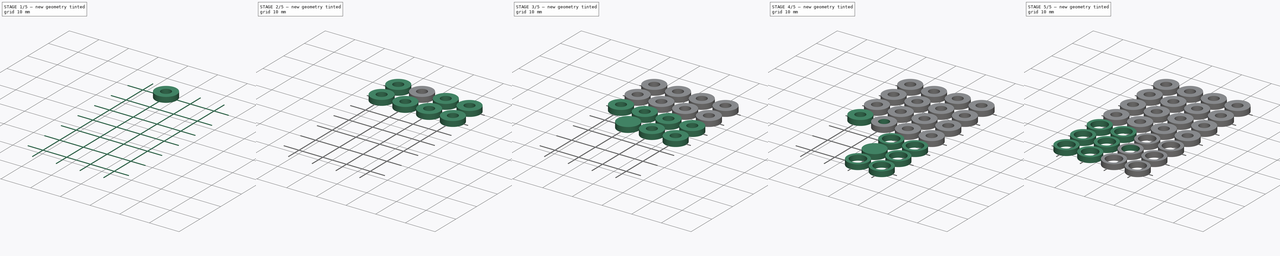
[diagram: build sequence overview — one tinted view per stage of 5, left to right]
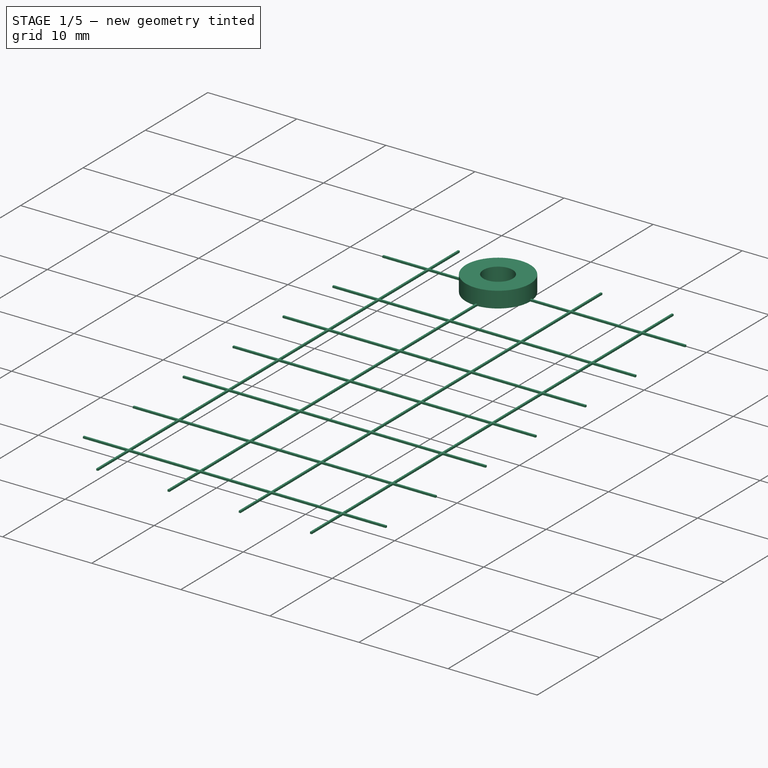
[diagram: stage 1 of 5 — iso view after this stage's code; geometry added in this stage tinted green]
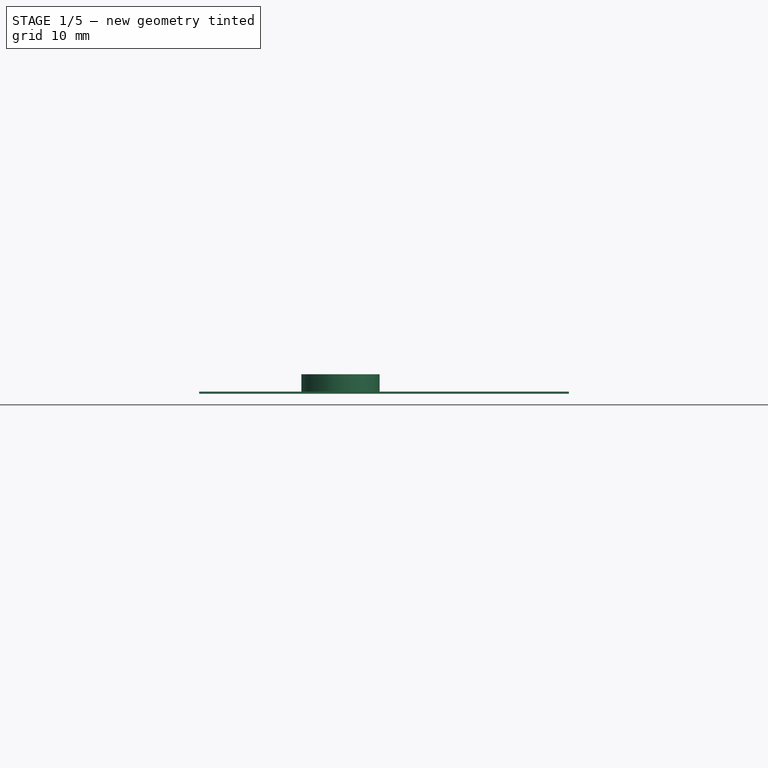
[diagram: stage 1 of 5 — front view after this stage's code; geometry added in this stage tinted green]
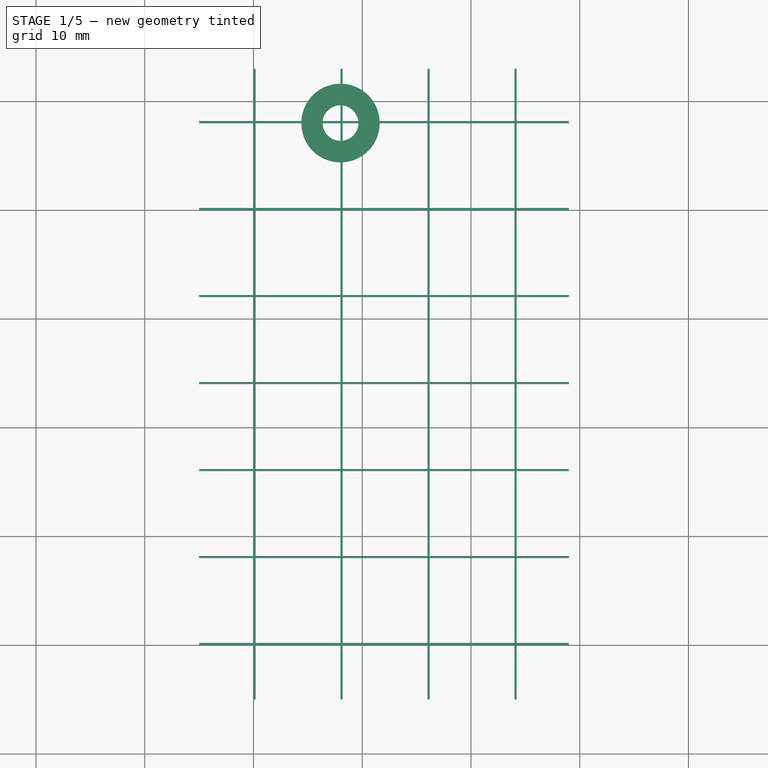
[diagram: stage 1 of 5 — top view after this stage's code; geometry added in this stage tinted green]
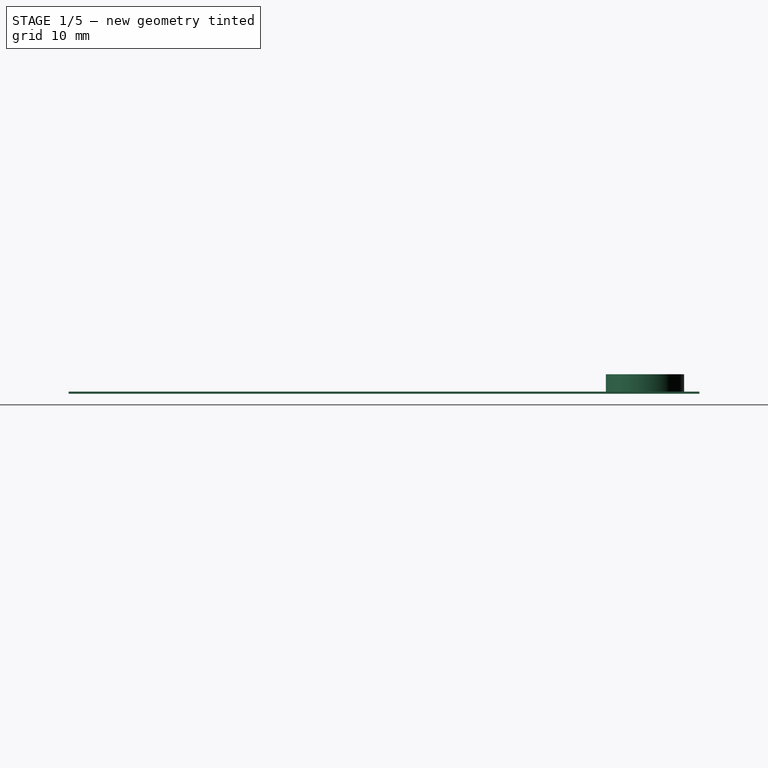
[diagram: stage 1 of 5 — right view after this stage's code; geometry added in this stage tinted green]
FCSTD DOCUMENT  (FreeCAD 0.16R6706 (Git))
Label: washers
License: All rights reserved
LicenseURL: http://en.wikipedia.org/wiki/All_rights_reserved
objects: Part::Cylinder×28, Sketcher::SketchObject×28, PartDesign::Pocket×28, Part::Box×11
note: 123 computed .brp shape members not serialized (recipe doc carries the construction recipe); baked Part::Feature solids carry a one-line shape summary decoded from their .brp

FEATURE [Part::Cylinder] Cylinder027  label="motor015"
  Angle = 360
  Height = 1.8
  Placement = pos=(8,48,0) rot=(0,0,1;0rad)
  Radius = 3.6
FEATURE [Sketcher::SketchObject] Sketch027  label="motorsketch015"
  Placement = pos=(8,48,1.8) rot=(0,0,1;0rad)
  Support = -> Cylinder027 [Face2]
  sketch-geometry (1):
    g0: Circle CenterX=0 CenterY=0 CenterZ=0 NormalX=0 NormalY=0 NormalZ=1 Radius=1.65
  constraints (3):
    c: DistanceX(g-2,g0) = 0
    c: DistanceY(g-1,g0) = 0
    c: Radius(g0) = 1.65
FEATURE [PartDesign::Pocket] Pocket027  label="motorpocket015"
  Length = 5
  Placement = pos=(8,48,0) rot=(0,0,1;0rad)
  Sketch = -> Sketch027
  Type = 0
FEATURE [Part::Box] Box  label="raft"
  Height = 0.2
  Length = 0.2
  Placement = pos=(0,-5,0) rot=(0,0,1;0rad)
  Width = 58
FEATURE [Part::Box] Box001  label="raft001"
  Height = 0.2
  Length = 0.2
  Placement = pos=(8,-5,0) rot=(0,0,1;0rad)
  Width = 58
FEATURE [Part::Box] Box002  label="raft002"
  Height = 0.2
  Length = 0.2
  Placement = pos=(16,-5,0) rot=(0,0,1;0rad)
  Width = 58
FEATURE [Part::Box] Box003  label="raft003"
  Height = 0.2
  Length = 0.2
  Placement = pos=(24,-5,0) rot=(0,0,1;0rad)
  Width = 58
FEATURE [Part::Box] Box004  label="raft004"
  Height = 0.2
  Length = 34
  Placement = pos=(-5,0,0) rot=(0,0,1;0rad)
  Width = 0.2
FEATURE [Part::Box] Box005  label="raft005"
  Height = 0.2
  Length = 34
  Placement = pos=(-5,8,0) rot=(0,0,1;0rad)
  Width = 0.2
FEATURE [Part::Box] Box006  label="raft006"
  Height = 0.2
  Length = 34
  Placement = pos=(-5,16,0) rot=(0,0,1;0rad)
  Width = 0.2
FEATURE [Part::Box] Box007  label="raft007"
  Height = 0.2
  Length = 34
  Placement = pos=(-5,24,0) rot=(0,0,1;0rad)
  Width = 0.2
FEATURE [Part::Box] Box008  label="raft008"
  Height = 0.2
  Length = 34
  Placement = pos=(-5,32,0) rot=(0,0,1;0rad)
  Width = 0.2
FEATURE [Part::Box] Box009  label="raft009"
  Height = 0.2
  Length = 34
  Placement = pos=(-5,40,0) rot=(0,0,1;0rad)
  Width = 0.2
FEATURE [Part::Box] Box010  label="raft010"
  Height = 0.2
  Length = 34
  Placement = pos=(-5,48,0) rot=(0,0,1;0rad)
  Width = 0.2
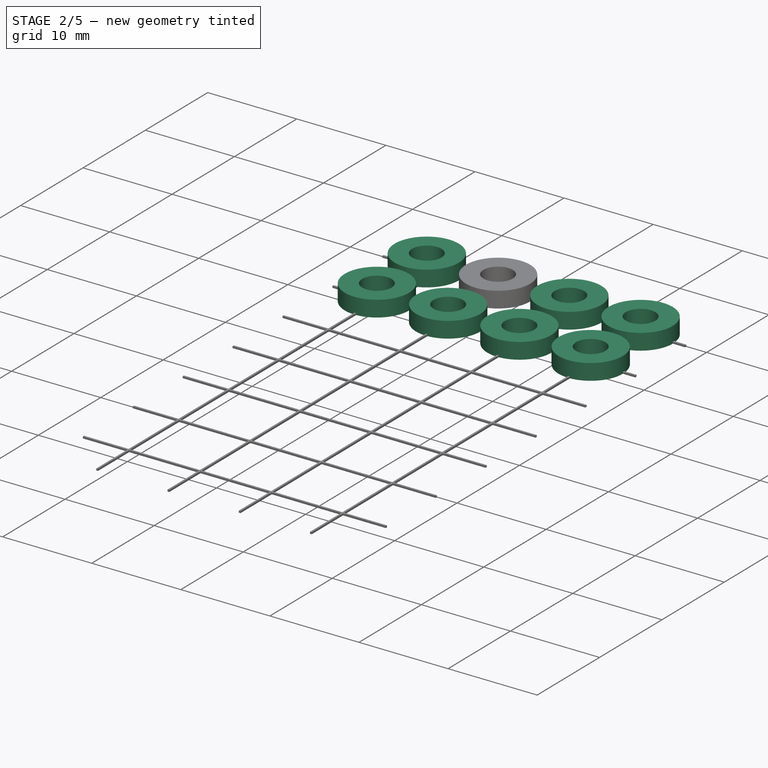
[diagram: stage 2 of 5 — iso view after this stage's code; geometry added in this stage tinted green]
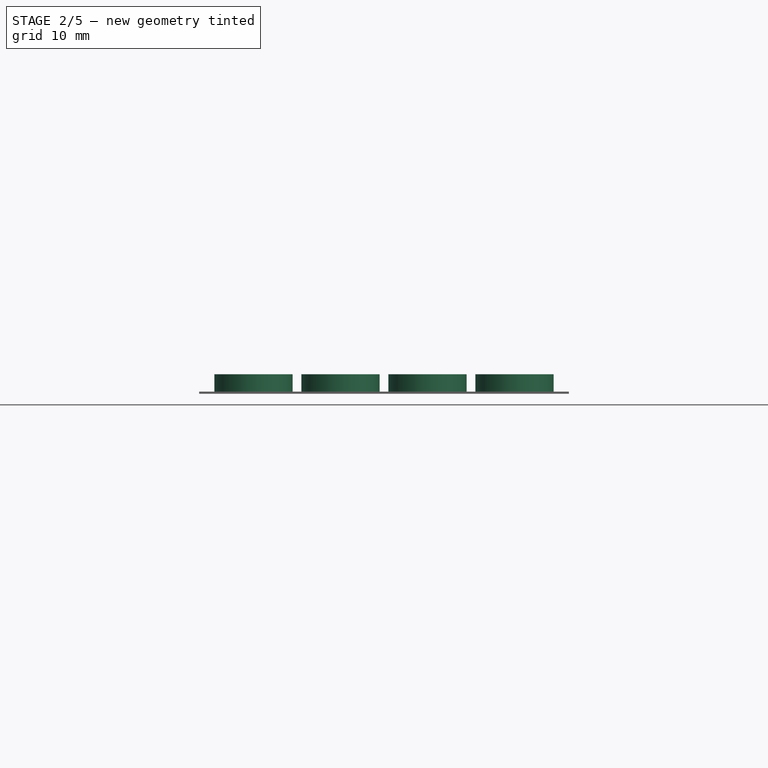
[diagram: stage 2 of 5 — front view after this stage's code; geometry added in this stage tinted green]
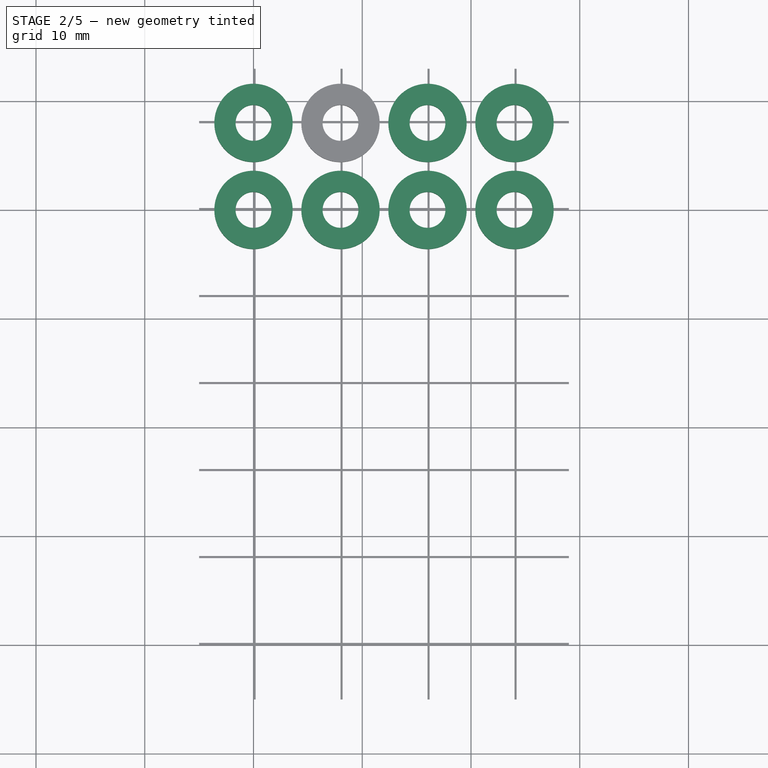
[diagram: stage 2 of 5 — top view after this stage's code; geometry added in this stage tinted green]
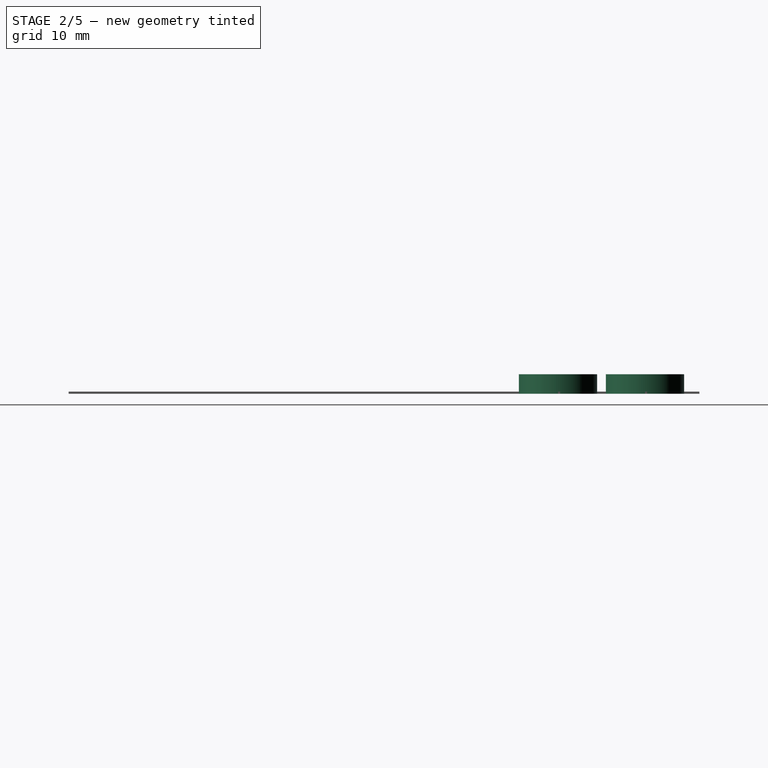
[diagram: stage 2 of 5 — right view after this stage's code; geometry added in this stage tinted green]
FEATURE [Part::Cylinder] Cylinder020  label="motor008"
  Angle = 360
  Height = 1.8
  Placement = pos=(24,40,0) rot=(0,0,1;0rad)
  Radius = 3.6
FEATURE [Sketcher::SketchObject] Sketch020  label="motorsketch008"
  Placement = pos=(24,40,1.8) rot=(0,0,1;0rad)
  Support = -> Cylinder020 [Face2]
  sketch-geometry (1):
    g0: Circle CenterX=0 CenterY=0 CenterZ=0 NormalX=0 NormalY=0 NormalZ=1 Radius=1.65
  constraints (3):
    c: DistanceX(g-2,g0) = 0
    c: DistanceY(g-1,g0) = 0
    c: Radius(g0) = 1.65
FEATURE [PartDesign::Pocket] Pocket020  label="motorpocket008"
  Length = 5
  Placement = pos=(24,40,0) rot=(0,0,1;0rad)
  Sketch = -> Sketch020
  Type = 0
FEATURE [Part::Cylinder] Cylinder021  label="motor009"
  Angle = 360
  Height = 1.8
  Placement = pos=(16,40,0) rot=(0,0,1;0rad)
  Radius = 3.6
FEATURE [Sketcher::SketchObject] Sketch021  label="motorsketch009"
  Placement = pos=(16,40,1.8) rot=(0,0,1;0rad)
  Support = -> Cylinder021 [Face2]
  sketch-geometry (1):
    g0: Circle CenterX=0 CenterY=0 CenterZ=0 NormalX=0 NormalY=0 NormalZ=1 Radius=1.65
  constraints (3):
    c: DistanceX(g-2,g0) = 0
    c: DistanceY(g-1,g0) = 0
    c: Radius(g0) = 1.65
FEATURE [PartDesign::Pocket] Pocket021  label="motorpocket009"
  Length = 5
  Placement = pos=(16,40,0) rot=(0,0,1;0rad)
  Sketch = -> Sketch021
  Type = 0
FEATURE [Part::Cylinder] Cylinder022  label="motor010"
  Angle = 360
  Height = 1.8
  Placement = pos=(0,40,0) rot=(0,0,1;0rad)
  Radius = 3.6
FEATURE [Sketcher::SketchObject] Sketch022  label="motorsketch010"
  Placement = pos=(0,40,1.8) rot=(0,0,1;0rad)
  Support = -> Cylinder022 [Face2]
  sketch-geometry (1):
    g0: Circle CenterX=0 CenterY=0 CenterZ=0 NormalX=0 NormalY=0 NormalZ=1 Radius=1.65
  constraints (3):
    c: DistanceX(g-2,g0) = 0
    c: DistanceY(g-1,g0) = 0
    c: Radius(g0) = 1.65
FEATURE [PartDesign::Pocket] Pocket022  label="motorpocket010"
  Length = 5
  Placement = pos=(0,40,0) rot=(0,0,1;0rad)
  Sketch = -> Sketch022
  Type = 0
FEATURE [Part::Cylinder] Cylinder023  label="motor011"
  Angle = 360
  Height = 1.8
  Placement = pos=(8,40,0) rot=(0,0,1;0rad)
  Radius = 3.6
FEATURE [Sketcher::SketchObject] Sketch023  label="motorsketch011"
  Placement = pos=(8,40,1.8) rot=(0,0,1;0rad)
  Support = -> Cylinder023 [Face2]
  sketch-geometry (1):
    g0: Circle CenterX=0 CenterY=0 CenterZ=0 NormalX=0 NormalY=0 NormalZ=1 Radius=1.65
  constraints (3):
    c: DistanceX(g-2,g0) = 0
    c: DistanceY(g-1,g0) = 0
    c: Radius(g0) = 1.65
FEATURE [PartDesign::Pocket] Pocket023  label="motorpocket011"
  Length = 5
  Placement = pos=(8,40,0) rot=(0,0,1;0rad)
  Sketch = -> Sketch023
  Type = 0
FEATURE [Part::Cylinder] Cylinder024  label="motor012"
  Angle = 360
  Height = 1.8
  Placement = pos=(24,48,0) rot=(0,0,1;0rad)
  Radius = 3.6
FEATURE [Sketcher::SketchObject] Sketch024  label="motorsketch012"
  Placement = pos=(24,48,1.8) rot=(0,0,1;0rad)
  Support = -> Cylinder024 [Face2]
  sketch-geometry (1):
    g0: Circle CenterX=0 CenterY=0 CenterZ=0 NormalX=0 NormalY=0 NormalZ=1 Radius=1.65
  constraints (3):
    c: DistanceX(g-2,g0) = 0
    c: DistanceY(g-1,g0) = 0
    c: Radius(g0) = 1.65
FEATURE [PartDesign::Pocket] Pocket024  label="motorpocket012"
  Length = 5
  Placement = pos=(24,48,0) rot=(0,0,1;0rad)
  Sketch = -> Sketch024
  Type = 0
FEATURE [Part::Cylinder] Cylinder025  label="motor013"
  Angle = 360
  Height = 1.8
  Placement = pos=(16,48,0) rot=(0,0,1;0rad)
  Radius = 3.6
FEATURE [Sketcher::SketchObject] Sketch025  label="motorsketch013"
  Placement = pos=(16,48,1.8) rot=(0,0,1;0rad)
  Support = -> Cylinder025 [Face2]
  sketch-geometry (1):
    g0: Circle CenterX=0 CenterY=0 CenterZ=0 NormalX=0 NormalY=0 NormalZ=1 Radius=1.65
  constraints (3):
    c: DistanceX(g-2,g0) = 0
    c: DistanceY(g-1,g0) = 0
    c: Radius(g0) = 1.65
FEATURE [PartDesign::Pocket] Pocket025  label="motorpocket013"
  Length = 5
  Placement = pos=(16,48,0) rot=(0,0,1;0rad)
  Sketch = -> Sketch025
  Type = 0
FEATURE [Part::Cylinder] Cylinder026  label="motor014"
  Angle = 360
  Height = 1.8
  Placement = pos=(0,48,0) rot=(0,0,1;0rad)
  Radius = 3.6
FEATURE [Sketcher::SketchObject] Sketch026  label="motorsketch014"
  Placement = pos=(0,48,1.8) rot=(0,0,1;0rad)
  Support = -> Cylinder026 [Face2]
  sketch-geometry (1):
    g0: Circle CenterX=0 CenterY=0 CenterZ=0 NormalX=0 NormalY=0 NormalZ=1 Radius=1.65
  constraints (3):
    c: DistanceX(g-2,g0) = 0
    c: DistanceY(g-1,g0) = 0
    c: Radius(g0) = 1.65
FEATURE [PartDesign::Pocket] Pocket026  label="motorpocket014"
  Length = 5
  Placement = pos=(0,48,0) rot=(0,0,1;0rad)
  Sketch = -> Sketch026
  Type = 0
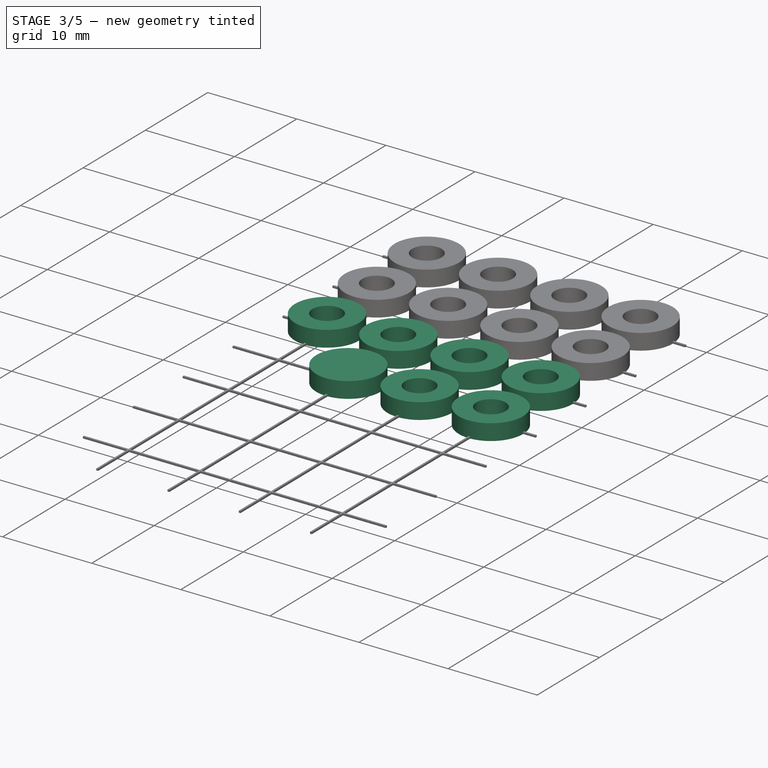
[diagram: stage 3 of 5 — iso view after this stage's code; geometry added in this stage tinted green]
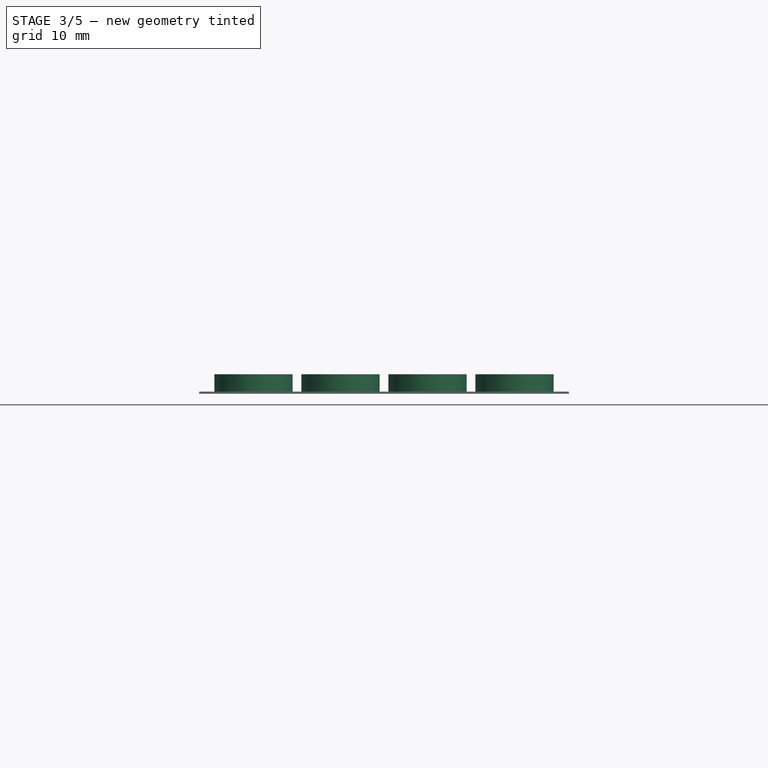
[diagram: stage 3 of 5 — front view after this stage's code; geometry added in this stage tinted green]
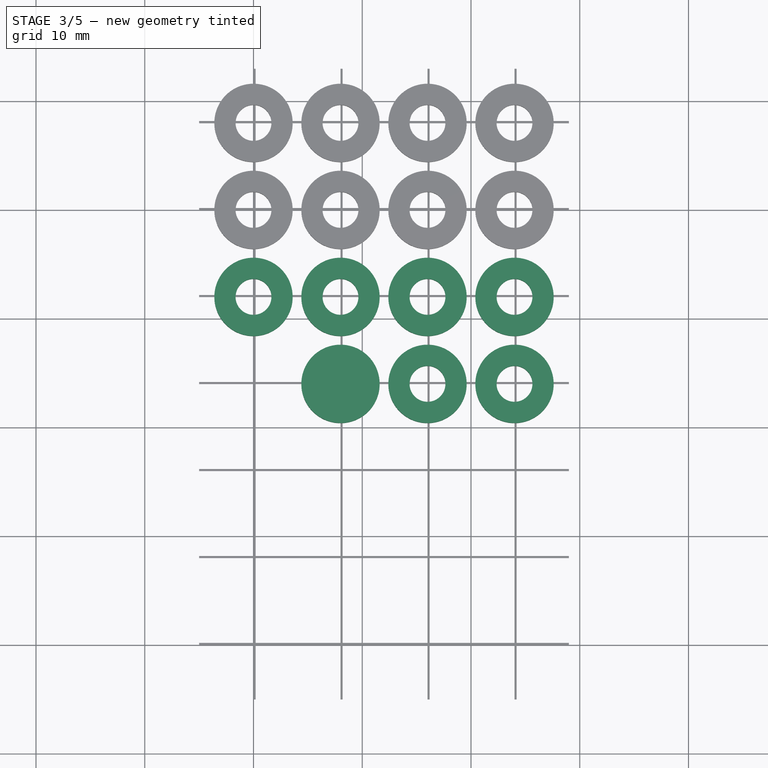
[diagram: stage 3 of 5 — top view after this stage's code; geometry added in this stage tinted green]
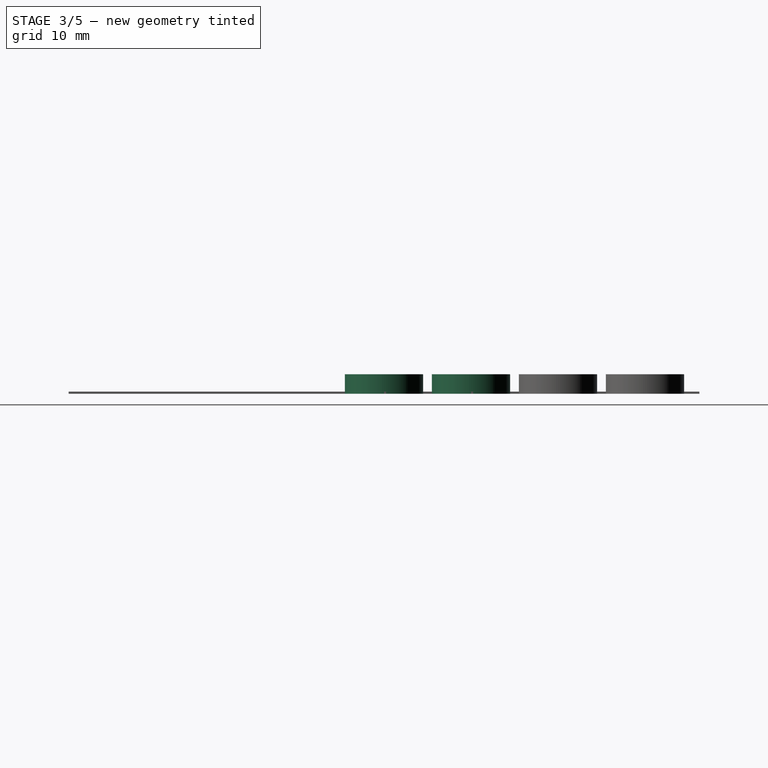
[diagram: stage 3 of 5 — right view after this stage's code; geometry added in this stage tinted green]
FEATURE [Part::Cylinder] Cylinder013  label="motor001"
  Angle = 360
  Height = 1.8
  Placement = pos=(8,24,0) rot=(0,0,1;0rad)
  Radius = 3.6
FEATURE [Part::Cylinder] Cylinder014  label="motor002"
  Angle = 360
  Height = 1.8
  Placement = pos=(16,24,0) rot=(0,0,1;0rad)
  Radius = 3.6
FEATURE [Sketcher::SketchObject] Sketch014  label="motorsketch002"
  Placement = pos=(16,24,1.8) rot=(0,0,1;0rad)
  Support = -> Cylinder014 [Face2]
  sketch-geometry (1):
    g0: Circle CenterX=0 CenterY=0 CenterZ=0 NormalX=0 NormalY=0 NormalZ=1 Radius=1.65
  constraints (3):
    c: DistanceX(g-2,g0) = 0
    c: DistanceY(g-1,g0) = 0
    c: Radius(g0) = 1.65
FEATURE [PartDesign::Pocket] Pocket014  label="motorpocket002"
  Length = 5
  Placement = pos=(16,24,0) rot=(0,0,1;0rad)
  Sketch = -> Sketch014
  Type = 0
FEATURE [Part::Cylinder] Cylinder015  label="motor003"
  Angle = 360
  Height = 1.8
  Placement = pos=(24,24,0) rot=(0,0,1;0rad)
  Radius = 3.6
FEATURE [Sketcher::SketchObject] Sketch015  label="motorsketch003"
  Placement = pos=(24,24,1.8) rot=(0,0,1;0rad)
  Support = -> Cylinder015 [Face2]
  sketch-geometry (1):
    g0: Circle CenterX=0 CenterY=0 CenterZ=0 NormalX=0 NormalY=0 NormalZ=1 Radius=1.65
  constraints (3):
    c: DistanceX(g-2,g0) = 0
    c: DistanceY(g-1,g0) = 0
    c: Radius(g0) = 1.65
FEATURE [PartDesign::Pocket] Pocket015  label="motorpocket003"
  Length = 5
  Placement = pos=(24,24,0) rot=(0,0,1;0rad)
  Sketch = -> Sketch015
  Type = 0
FEATURE [Part::Cylinder] Cylinder016  label="motor004"
  Angle = 360
  Height = 1.8
  Placement = pos=(24,32,0) rot=(0,0,1;0rad)
  Radius = 3.6
FEATURE [Sketcher::SketchObject] Sketch016  label="motorsketch004"
  Placement = pos=(24,32,1.8) rot=(0,0,1;0rad)
  Support = -> Cylinder016 [Face2]
  sketch-geometry (1):
    g0: Circle CenterX=0 CenterY=0 CenterZ=0 NormalX=0 NormalY=0 NormalZ=1 Radius=1.65
  constraints (3):
    c: DistanceX(g-2,g0) = 0
    c: DistanceY(g-1,g0) = 0
    c: Radius(g0) = 1.65
FEATURE [PartDesign::Pocket] Pocket016  label="motorpocket004"
  Length = 5
  Placement = pos=(24,32,0) rot=(0,0,1;0rad)
  Sketch = -> Sketch016
  Type = 0
FEATURE [Part::Cylinder] Cylinder017  label="motor005"
  Angle = 360
  Height = 1.8
  Placement = pos=(16,32,0) rot=(0,0,1;0rad)
  Radius = 3.6
FEATURE [Sketcher::SketchObject] Sketch017  label="motorsketch005"
  Placement = pos=(16,32,1.8) rot=(0,0,1;0rad)
  Support = -> Cylinder017 [Face2]
  sketch-geometry (1):
    g0: Circle CenterX=0 CenterY=0 CenterZ=0 NormalX=0 NormalY=0 NormalZ=1 Radius=1.65
  constraints (3):
    c: DistanceX(g-2,g0) = 0
    c: DistanceY(g-1,g0) = 0
    c: Radius(g0) = 1.65
FEATURE [PartDesign::Pocket] Pocket017  label="motorpocket005"
  Length = 5
  Placement = pos=(16,32,0) rot=(0,0,1;0rad)
  Sketch = -> Sketch017
  Type = 0
FEATURE [Part::Cylinder] Cylinder018  label="motor006"
  Angle = 360
  Height = 1.8
  Placement = pos=(0,32,0) rot=(0,0,1;0rad)
  Radius = 3.6
FEATURE [Sketcher::SketchObject] Sketch018  label="motorsketch006"
  Placement = pos=(0,32,1.8) rot=(0,0,1;0rad)
  Support = -> Cylinder018 [Face2]
  sketch-geometry (1):
    g0: Circle CenterX=0 CenterY=0 CenterZ=0 NormalX=0 NormalY=0 NormalZ=1 Radius=1.65
  constraints (3):
    c: DistanceX(g-2,g0) = 0
    c: DistanceY(g-1,g0) = 0
    c: Radius(g0) = 1.65
FEATURE [PartDesign::Pocket] Pocket018  label="motorpocket006"
  Length = 5
  Placement = pos=(0,32,0) rot=(0,0,1;0rad)
  Sketch = -> Sketch018
  Type = 0
FEATURE [Part::Cylinder] Cylinder019  label="motor007"
  Angle = 360
  Height = 1.8
  Placement = pos=(8,32,0) rot=(0,0,1;0rad)
  Radius = 3.6
FEATURE [Sketcher::SketchObject] Sketch019  label="motorsketch007"
  Placement = pos=(8,32,1.8) rot=(0,0,1;0rad)
  Support = -> Cylinder019 [Face2]
  sketch-geometry (1):
    g0: Circle CenterX=0 CenterY=0 CenterZ=0 NormalX=0 NormalY=0 NormalZ=1 Radius=1.65
  constraints (3):
    c: DistanceX(g-2,g0) = 0
    c: DistanceY(g-1,g0) = 0
    c: Radius(g0) = 1.65
FEATURE [PartDesign::Pocket] Pocket019  label="motorpocket007"
  Length = 5
  Placement = pos=(8,32,0) rot=(0,0,1;0rad)
  Sketch = -> Sketch019
  Type = 0
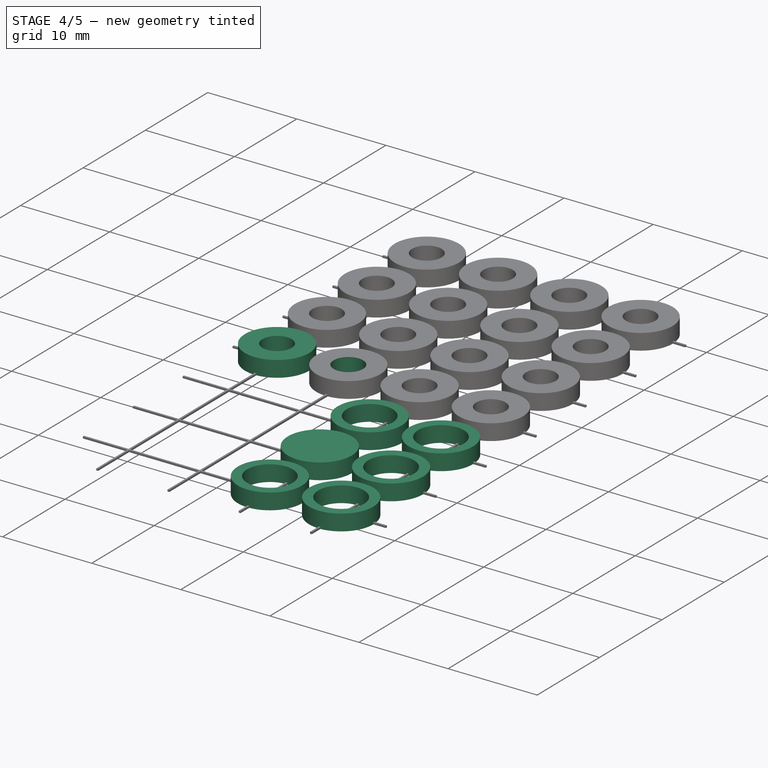
[diagram: stage 4 of 5 — iso view after this stage's code; geometry added in this stage tinted green]
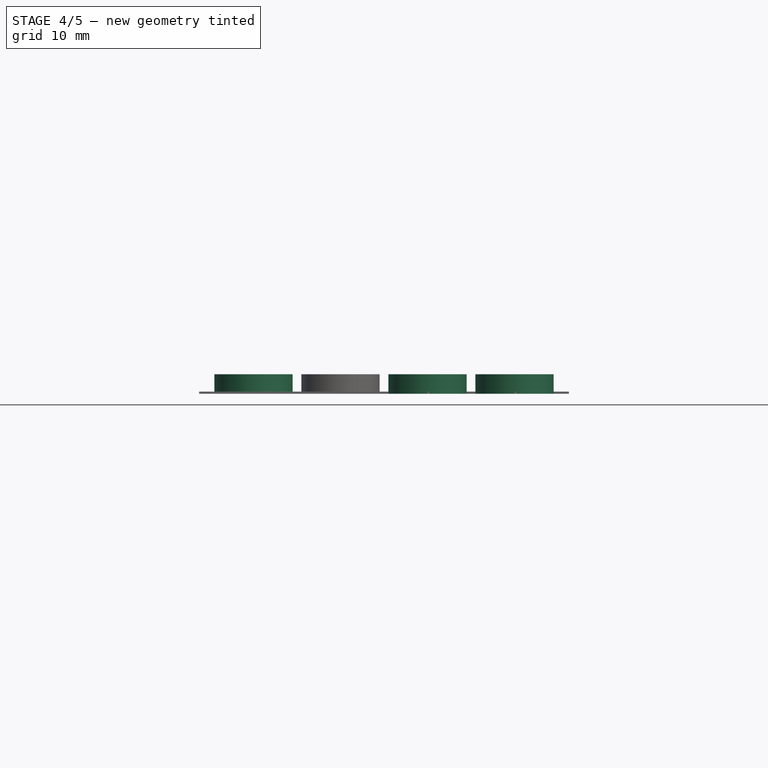
[diagram: stage 4 of 5 — front view after this stage's code; geometry added in this stage tinted green]
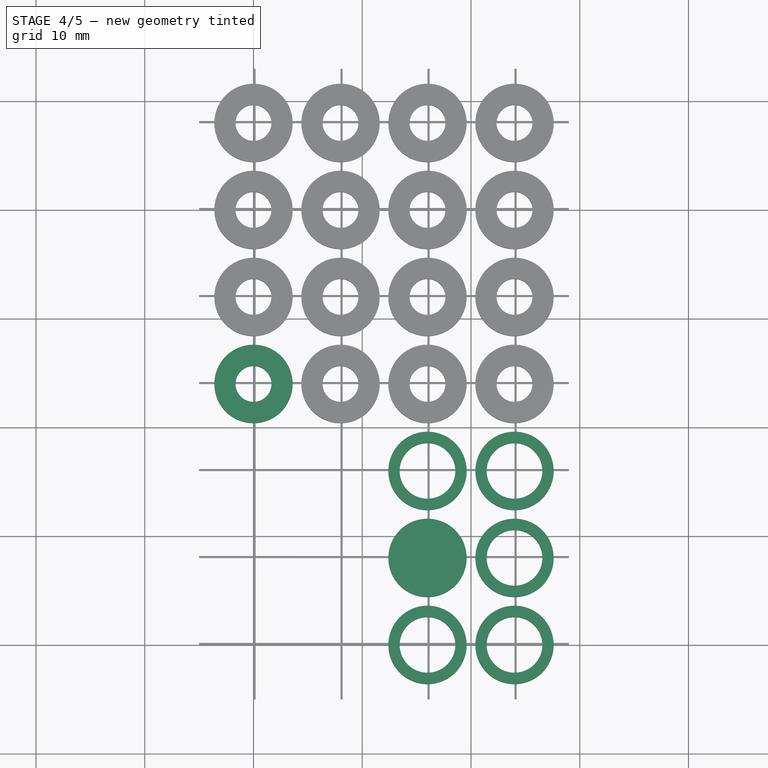
[diagram: stage 4 of 5 — top view after this stage's code; geometry added in this stage tinted green]
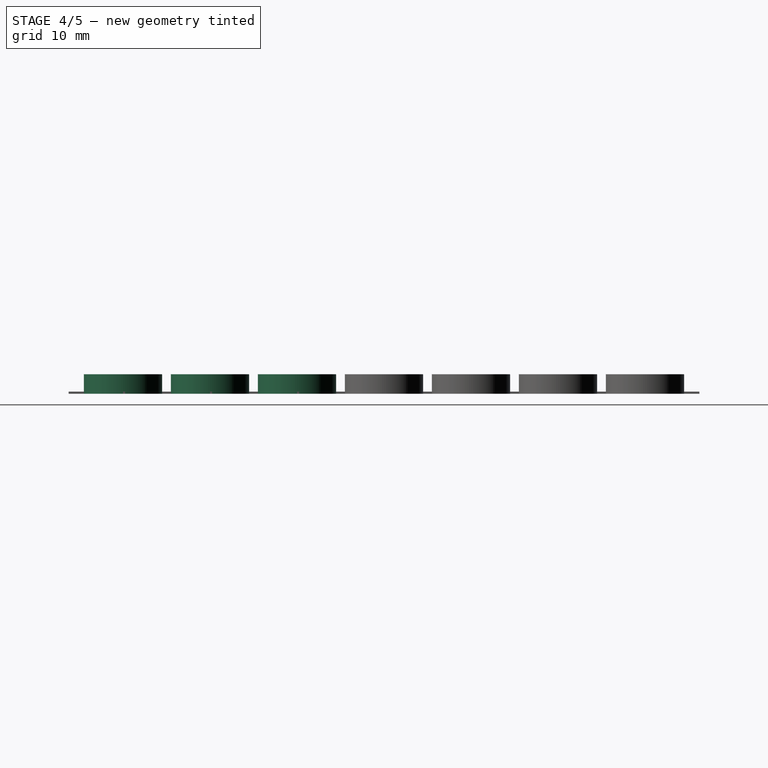
[diagram: stage 4 of 5 — right view after this stage's code; geometry added in this stage tinted green]
FEATURE [Part::Cylinder] Cylinder006
  Angle = 360
  Height = 1.8
  Placement = pos=(16,8,0) rot=(0,0,1;0rad)
  Radius = 3.6
FEATURE [Part::Cylinder] Cylinder007
  Angle = 360
  Height = 1.8
  Placement = pos=(16,0,0) rot=(0,0,1;0rad)
  Radius = 3.6
FEATURE [Sketcher::SketchObject] Sketch007
  Placement = pos=(16,0,1.8) rot=(0,0,1;0rad)
  Support = -> Cylinder007 [Face2]
  sketch-geometry (1):
    g0: Circle CenterX=0 CenterY=0 CenterZ=0 NormalX=0 NormalY=0 NormalZ=1 Radius=2.56
  constraints (3):
    c: DistanceX(g-2,g0) = 0
    c: DistanceY(g-1,g0) = 0
    c: Radius(g0) = 2.56
FEATURE [PartDesign::Pocket] Pocket007
  Length = 5
  Placement = pos=(16,0,0) rot=(0,0,1;0rad)
  Sketch = -> Sketch007
  Type = 0
FEATURE [Part::Cylinder] Cylinder008
  Angle = 360
  Height = 1.8
  Placement = pos=(16,16,0) rot=(0,0,1;0rad)
  Radius = 3.6
FEATURE [Sketcher::SketchObject] Sketch008
  Placement = pos=(16,16,1.8) rot=(0,0,1;0rad)
  Support = -> Cylinder008 [Face2]
  sketch-geometry (1):
    g0: Circle CenterX=0 CenterY=0 CenterZ=0 NormalX=0 NormalY=0 NormalZ=1 Radius=2.56
  constraints (3):
    c: DistanceX(g-2,g0) = 0
    c: DistanceY(g-1,g0) = 0
    c: Radius(g0) = 2.56
FEATURE [PartDesign::Pocket] Pocket008
  Length = 5
  Placement = pos=(16,16,0) rot=(0,0,1;0rad)
  Sketch = -> Sketch008
  Type = 0
FEATURE [Part::Cylinder] Cylinder009
  Angle = 360
  Height = 1.8
  Placement = pos=(24,0,0) rot=(0,0,1;0rad)
  Radius = 3.6
FEATURE [Sketcher::SketchObject] Sketch009
  Placement = pos=(24,0,1.8) rot=(0,0,1;0rad)
  Support = -> Cylinder009 [Face2]
  sketch-geometry (1):
    g0: Circle CenterX=0 CenterY=0 CenterZ=0 NormalX=0 NormalY=0 NormalZ=1 Radius=2.56
  constraints (3):
    c: DistanceX(g-2,g0) = 0
    c: DistanceY(g-1,g0) = 0
    c: Radius(g0) = 2.56
FEATURE [PartDesign::Pocket] Pocket009
  Length = 5
  Placement = pos=(24,0,0) rot=(0,0,1;0rad)
  Sketch = -> Sketch009
  Type = 0
FEATURE [Part::Cylinder] Cylinder010
  Angle = 360
  Height = 1.8
  Placement = pos=(24,8,0) rot=(0,0,1;0rad)
  Radius = 3.6
FEATURE [Sketcher::SketchObject] Sketch010
  Placement = pos=(24,8,1.8) rot=(0,0,1;0rad)
  Support = -> Cylinder010 [Face2]
  sketch-geometry (1):
    g0: Circle CenterX=0 CenterY=0 CenterZ=0 NormalX=0 NormalY=0 NormalZ=1 Radius=2.56
  constraints (3):
    c: DistanceX(g-2,g0) = 0
    c: DistanceY(g-1,g0) = 0
    c: Radius(g0) = 2.56
FEATURE [PartDesign::Pocket] Pocket010
  Length = 5
  Placement = pos=(24,8,0) rot=(0,0,1;0rad)
  Sketch = -> Sketch010
  Type = 0
FEATURE [Part::Cylinder] Cylinder011
  Angle = 360
  Height = 1.8
  Placement = pos=(24,16,0) rot=(0,0,1;0rad)
  Radius = 3.6
FEATURE [Sketcher::SketchObject] Sketch011
  Placement = pos=(24,16,1.8) rot=(0,0,1;0rad)
  Support = -> Cylinder011 [Face2]
  sketch-geometry (1):
    g0: Circle CenterX=0 CenterY=0 CenterZ=0 NormalX=0 NormalY=0 NormalZ=1 Radius=2.56
  constraints (3):
    c: DistanceX(g-2,g0) = 0
    c: DistanceY(g-1,g0) = 0
    c: Radius(g0) = 2.56
FEATURE [PartDesign::Pocket] Pocket011
  Length = 5
  Placement = pos=(24,16,0) rot=(0,0,1;0rad)
  Sketch = -> Sketch011
  Type = 0
FEATURE [Part::Cylinder] Cylinder012  label="motor"
  Angle = 360
  Height = 1.8
  Placement = pos=(0,24,0) rot=(0,0,1;0rad)
  Radius = 3.6
FEATURE [Sketcher::SketchObject] Sketch012  label="motorsketch"
  Placement = pos=(0,24,1.8) rot=(0,0,1;0rad)
  Support = -> Cylinder012 [Face2]
  sketch-geometry (1):
    g0: Circle CenterX=0 CenterY=0 CenterZ=0 NormalX=0 NormalY=0 NormalZ=1 Radius=1.65
  constraints (3):
    c: DistanceX(g-2,g0) = 0
    c: DistanceY(g-1,g0) = 0
    c: Radius(g0) = 1.65
FEATURE [PartDesign::Pocket] Pocket012  label="motorpocket"
  Length = 5
  Placement = pos=(0,24,0) rot=(0,0,1;0rad)
  Sketch = -> Sketch012
  Type = 0
FEATURE [Sketcher::SketchObject] Sketch013  label="motorsketch001"
  Placement = pos=(8,24,1.8) rot=(0,0,1;0rad)
  Support = -> Cylinder013 [Face2]
  sketch-geometry (1):
    g0: Circle CenterX=0 CenterY=0 CenterZ=0 NormalX=0 NormalY=0 NormalZ=1 Radius=1.65
  constraints (3):
    c: DistanceX(g-2,g0) = 0
    c: DistanceY(g-1,g0) = 0
    c: Radius(g0) = 1.65
FEATURE [PartDesign::Pocket] Pocket013  label="motorpocket001"
  Length = 5
  Placement = pos=(8,24,0) rot=(0,0,1;0rad)
  Sketch = -> Sketch013
  Type = 0
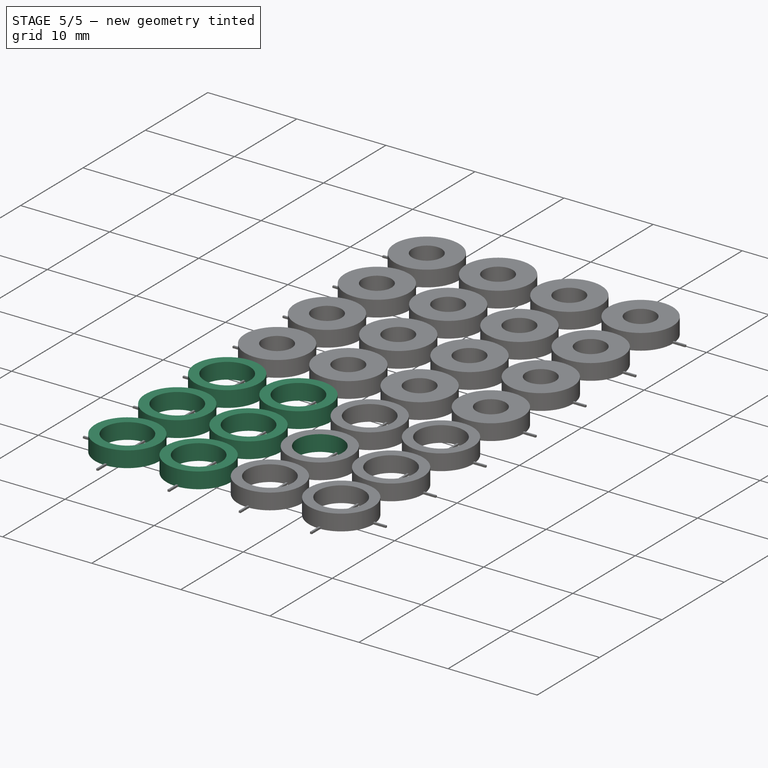
[diagram: stage 5 of 5 — iso view after this stage's code; geometry added in this stage tinted green]
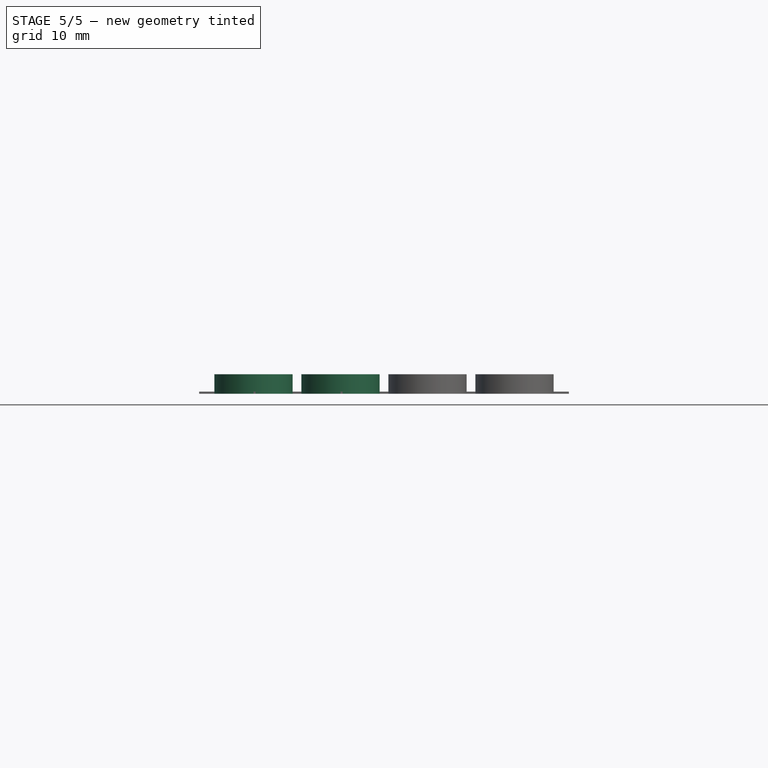
[diagram: stage 5 of 5 — front view after this stage's code; geometry added in this stage tinted green]
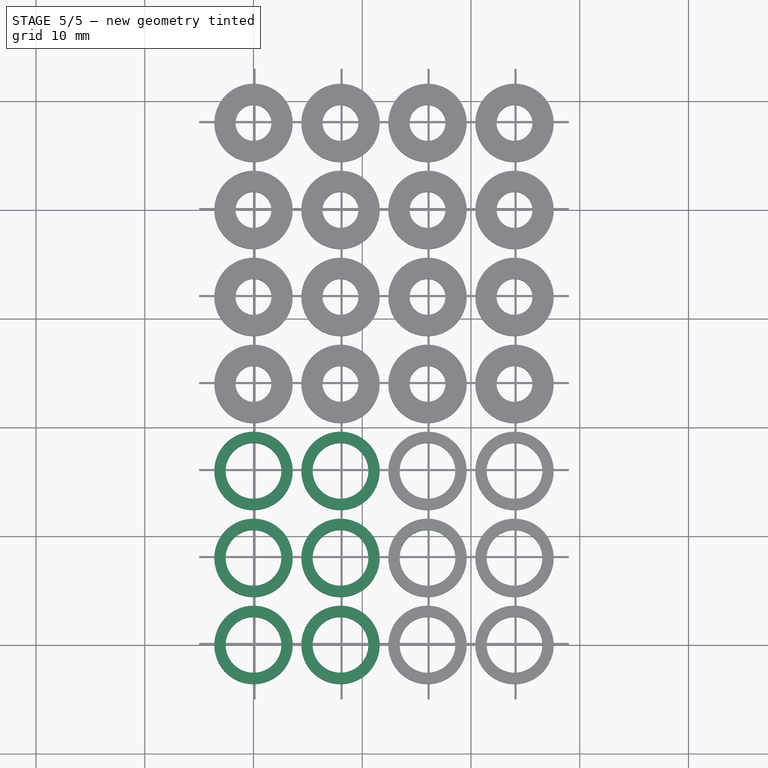
[diagram: stage 5 of 5 — top view after this stage's code; geometry added in this stage tinted green]
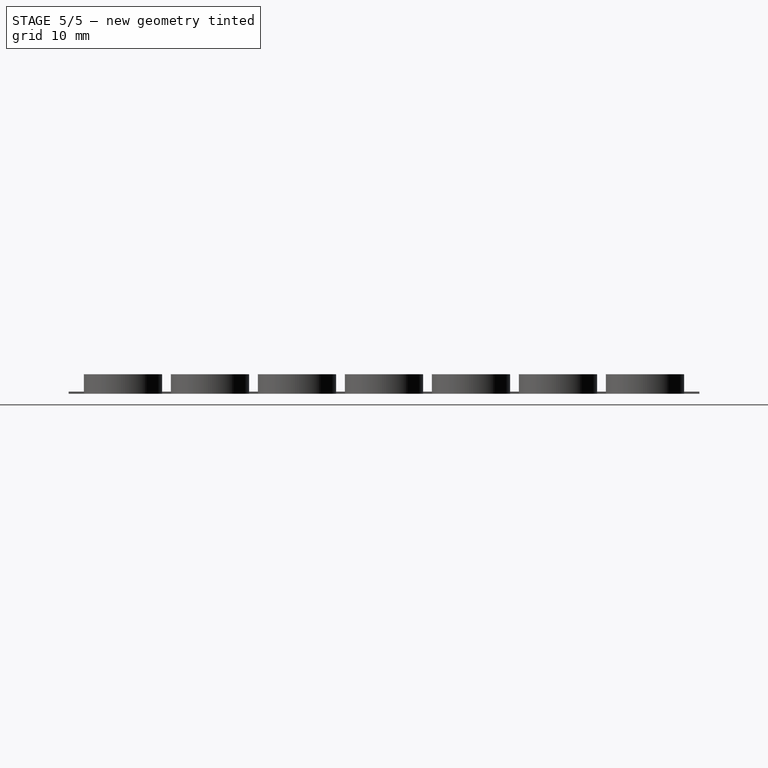
[diagram: stage 5 of 5 — right view after this stage's code; geometry added in this stage tinted green]
FEATURE [Part::Cylinder] Cylinder
  Angle = 360
  Height = 1.8
  Radius = 3.6
FEATURE [Sketcher::SketchObject] Sketch
  Placement = pos=(0,0,1.8) rot=(0,0,1;0rad)
  Support = -> Cylinder [Face2]
  sketch-geometry (1):
    g0: Circle CenterX=0 CenterY=0 CenterZ=0 NormalX=0 NormalY=0 NormalZ=1 Radius=2.56
  constraints (3):
    c: DistanceX(g-2,g0) = 0
    c: DistanceY(g-1,g0) = 0
    c: Radius(g0) = 2.56
FEATURE [PartDesign::Pocket] Pocket
  Length = 5
  Sketch = -> Sketch
  Type = 0
FEATURE [Part::Cylinder] Cylinder001
  Angle = 360
  Height = 1.8
  Placement = pos=(8,8,0) rot=(0,0,1;0rad)
  Radius = 3.6
FEATURE [Sketcher::SketchObject] Sketch001
  Placement = pos=(8,8,1.8) rot=(0,0,1;0rad)
  Support = -> Cylinder001 [Face2]
  sketch-geometry (1):
    g0: Circle CenterX=0 CenterY=0 CenterZ=0 NormalX=0 NormalY=0 NormalZ=1 Radius=2.56
  constraints (3):
    c: DistanceX(g-2,g0) = 0
    c: DistanceY(g-1,g0) = 0
    c: Radius(g0) = 2.56
FEATURE [PartDesign::Pocket] Pocket001
  Length = 5
  Placement = pos=(8,8,0) rot=(0,0,1;0rad)
  Sketch = -> Sketch001
  Type = 0
FEATURE [Part::Cylinder] Cylinder002
  Angle = 360
  Height = 1.8
  Placement = pos=(8,0,0) rot=(0,0,1;0rad)
  Radius = 3.6
FEATURE [Sketcher::SketchObject] Sketch002
  Placement = pos=(8,0,1.8) rot=(0,0,1;0rad)
  Support = -> Cylinder002 [Face2]
  sketch-geometry (1):
    g0: Circle CenterX=0 CenterY=0 CenterZ=0 NormalX=0 NormalY=0 NormalZ=1 Radius=2.56
  constraints (3):
    c: DistanceX(g-2,g0) = 0
    c: DistanceY(g-1,g0) = 0
    c: Radius(g0) = 2.56
FEATURE [PartDesign::Pocket] Pocket002
  Length = 5
  Placement = pos=(8,0,0) rot=(0,0,1;0rad)
  Sketch = -> Sketch002
  Type = 0
FEATURE [Part::Cylinder] Cylinder003
  Angle = 360
  Height = 1.8
  Placement = pos=(0,8,0) rot=(0,0,1;0rad)
  Radius = 3.6
FEATURE [Sketcher::SketchObject] Sketch003
  Placement = pos=(0,8,1.8) rot=(0,0,1;0rad)
  Support = -> Cylinder003 [Face2]
  sketch-geometry (1):
    g0: Circle CenterX=0 CenterY=0 CenterZ=0 NormalX=0 NormalY=0 NormalZ=1 Radius=2.56
  constraints (3):
    c: DistanceX(g-2,g0) = 0
    c: DistanceY(g-1,g0) = 0
    c: Radius(g0) = 2.56
FEATURE [PartDesign::Pocket] Pocket003
  Length = 5
  Placement = pos=(0,8,0) rot=(0,0,1;0rad)
  Sketch = -> Sketch003
  Type = 0
FEATURE [Part::Cylinder] Cylinder004
  Angle = 360
  Height = 1.8
  Placement = pos=(0,16,0) rot=(0,0,1;0rad)
  Radius = 3.6
FEATURE [Sketcher::SketchObject] Sketch004
  Placement = pos=(0,16,1.8) rot=(0,0,1;0rad)
  Support = -> Cylinder004 [Face2]
  sketch-geometry (1):
    g0: Circle CenterX=0 CenterY=0 CenterZ=0 NormalX=0 NormalY=0 NormalZ=1 Radius=2.56
  constraints (3):
    c: DistanceX(g-2,g0) = 0
    c: DistanceY(g-1,g0) = 0
    c: Radius(g0) = 2.56
FEATURE [PartDesign::Pocket] Pocket004
  Length = 5
  Placement = pos=(0,16,0) rot=(0,0,1;0rad)
  Sketch = -> Sketch004
  Type = 0
FEATURE [Part::Cylinder] Cylinder005
  Angle = 360
  Height = 1.8
  Placement = pos=(8,16,0) rot=(0,0,1;0rad)
  Radius = 3.6
FEATURE [Sketcher::SketchObject] Sketch005
  Placement = pos=(8,16,1.8) rot=(0,0,1;0rad)
  Support = -> Cylinder005 [Face2]
  sketch-geometry (1):
    g0: Circle CenterX=0 CenterY=0 CenterZ=0 NormalX=0 NormalY=0 NormalZ=1 Radius=2.56
  constraints (3):
    c: DistanceX(g-2,g0) = 0
    c: DistanceY(g-1,g0) = 0
    c: Radius(g0) = 2.56
FEATURE [PartDesign::Pocket] Pocket005
  Length = 5
  Placement = pos=(8,16,0) rot=(0,0,1;0rad)
  Sketch = -> Sketch005
  Type = 0
FEATURE [Sketcher::SketchObject] Sketch006
  Placement = pos=(16,8,1.8) rot=(0,0,1;0rad)
  Support = -> Cylinder006 [Face2]
  sketch-geometry (1):
    g0: Circle CenterX=0 CenterY=0 CenterZ=0 NormalX=0 NormalY=0 NormalZ=1 Radius=2.56
  constraints (3):
    c: DistanceX(g-2,g0) = 0
    c: DistanceY(g-1,g0) = 0
    c: Radius(g0) = 2.56
FEATURE [PartDesign::Pocket] Pocket006
  Length = 5
  Placement = pos=(16,8,0) rot=(0,0,1;0rad)
  Sketch = -> Sketch006
  Type = 0
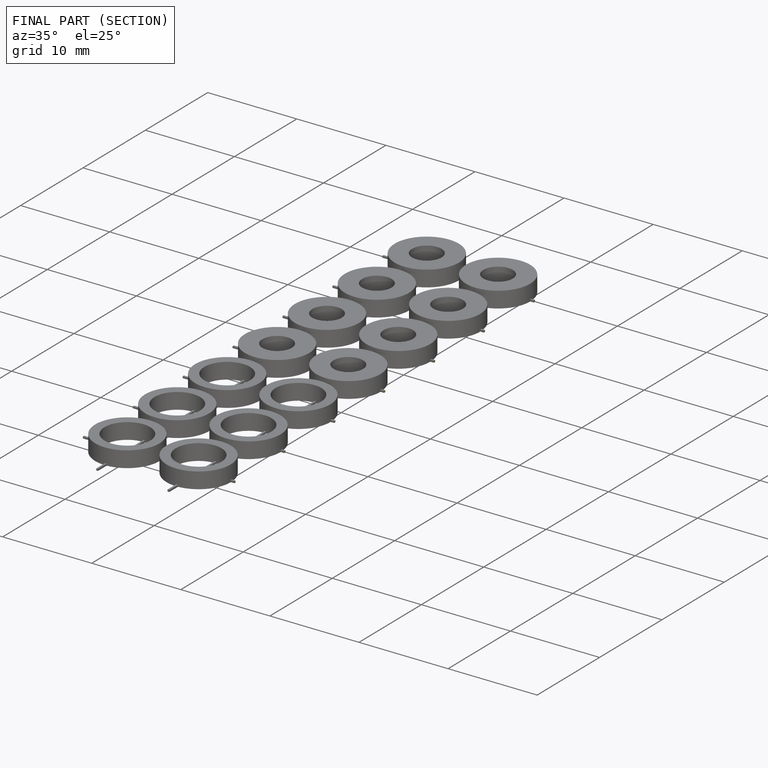
[diagram: finished part — half-section view (interior)]
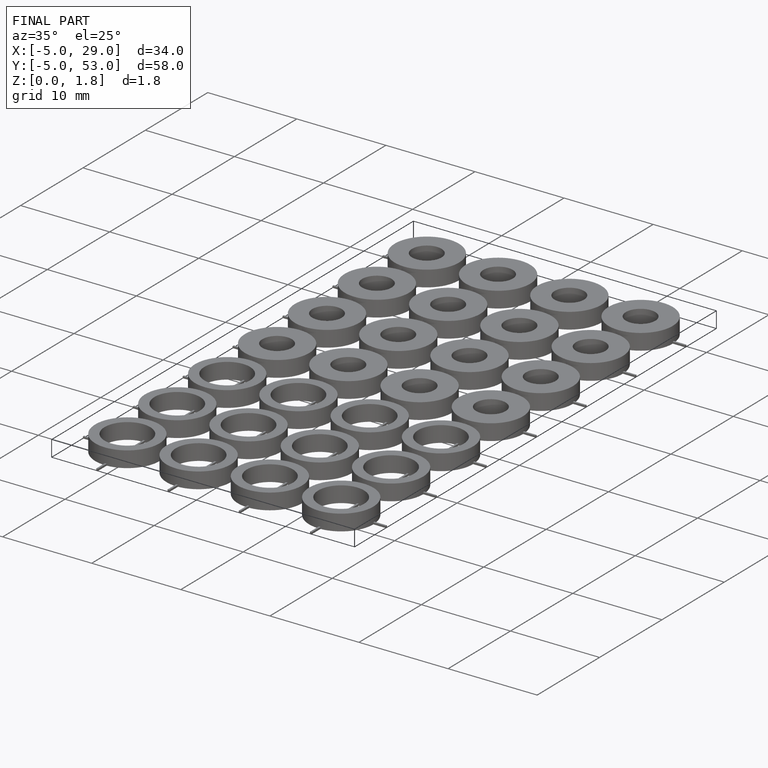
[diagram: finished part — iso view with bounding-box wireframe]
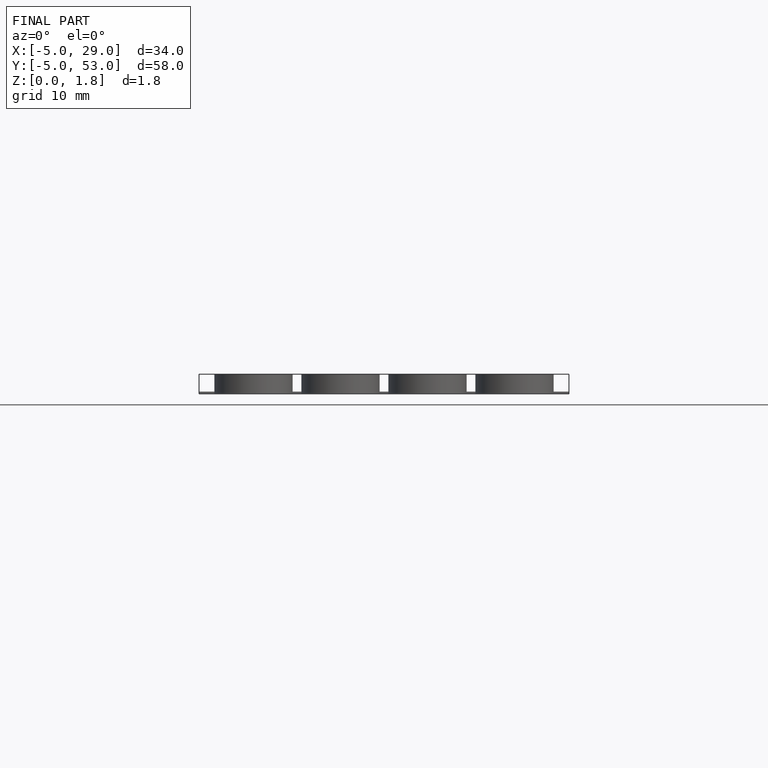
[diagram: finished part — front view with bounding-box wireframe]
